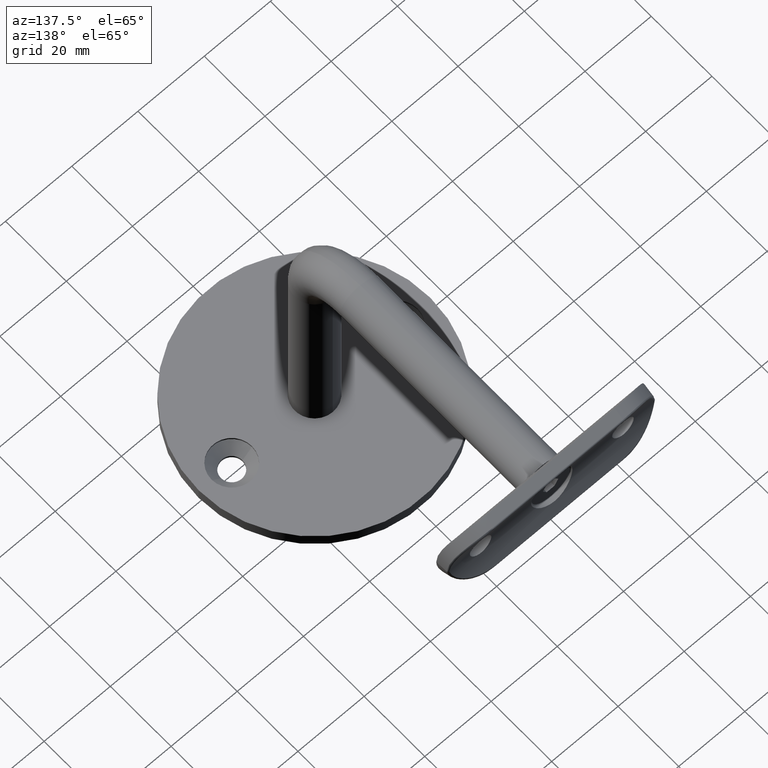
[diagram: clean part render]
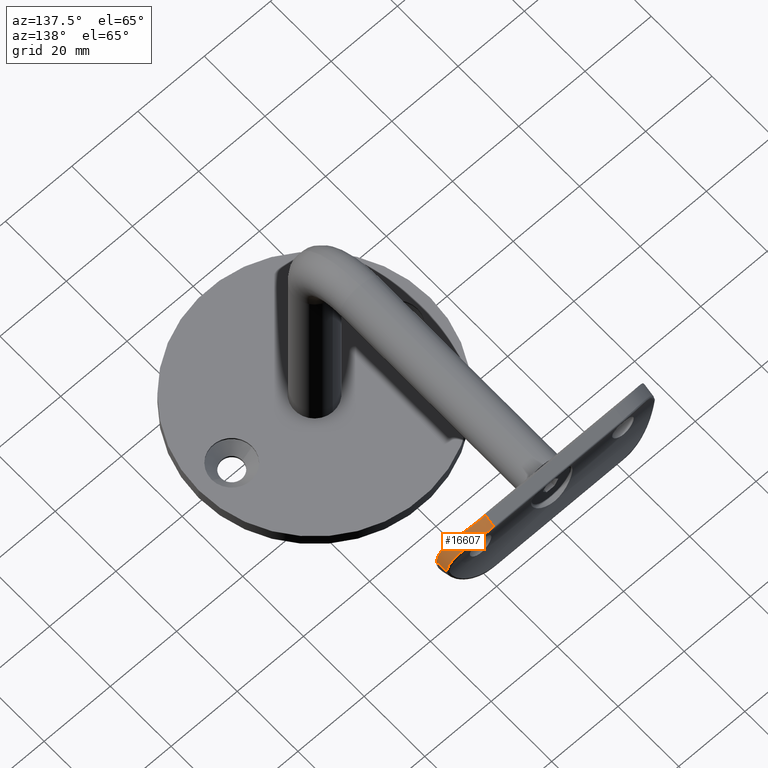
[diagram: same view with one face highlighted and labeled with its STEP entity id]
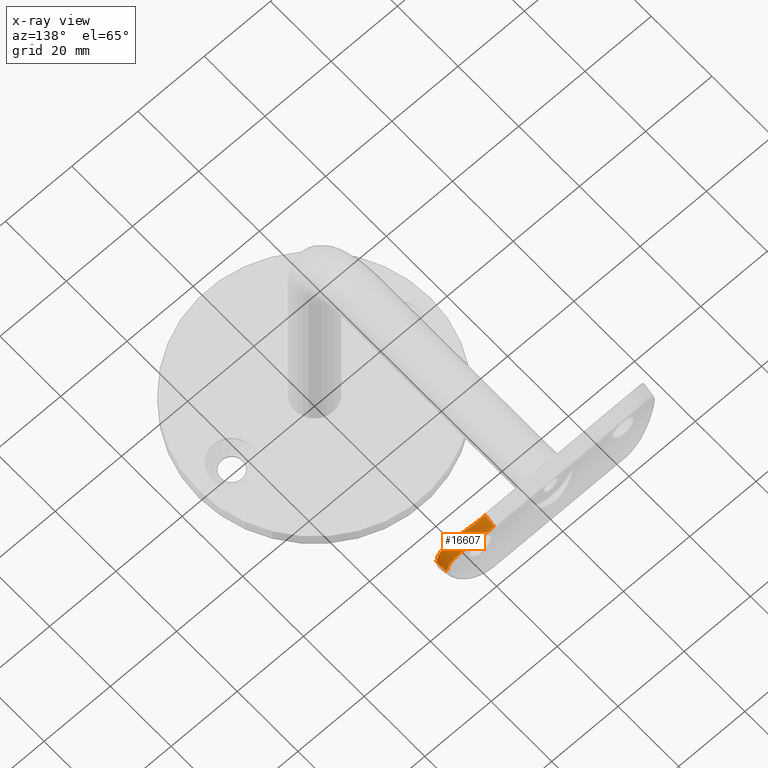
[diagram: x-ray of the same camera — body ghosted, the highlighted face saturated]
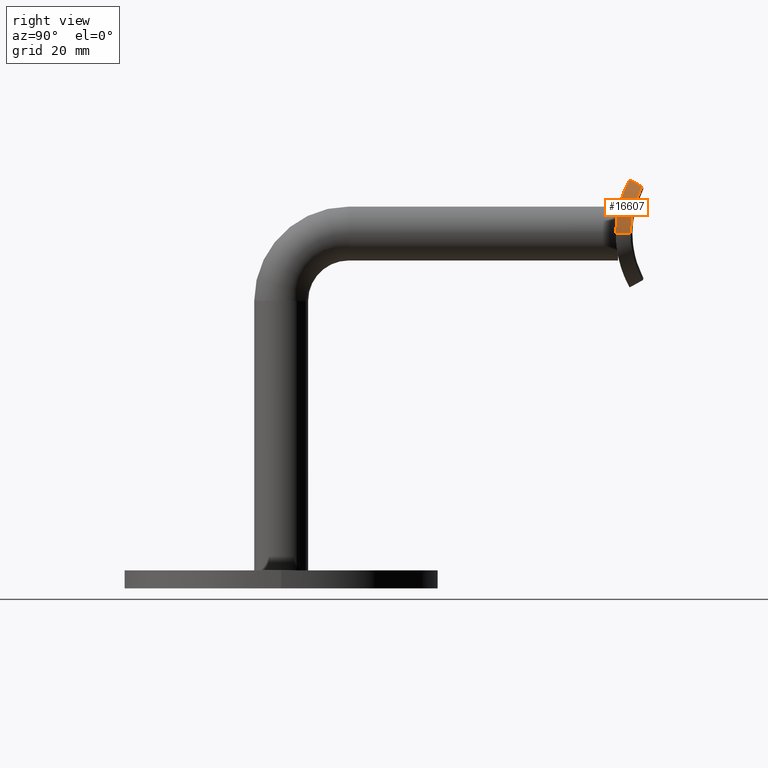
[diagram: same view with one face highlighted and labeled with its STEP entity id]
A machine part, auxiliary view. The second image highlights one B-rep face of the part: STEP entity #16607.
The next image is the same camera in x-ray: the body ghosted, the highlighted face saturated — about 0% of this face is hidden behind the body in this view.
A second angle (right view) of the same face is appended — the face is thin or edge-on in the first view.
In plain terms, the highlighted cylindrical surface (partial cylindrical patch) has radius 12 mm, axis along (-0, 0.8762, -0.4819).
Its self-contained STEP definition (entity closure, byte-faithful):
#77 = VERTEX_POINT ( 'NONE', #16967 ) ;
#687 = LINE ( 'NONE', #11283, #12724 ) ;
#697 = CARTESIAN_POINT ( 'NONE',  ( -4.343585444218764025, -3.321130880666761431, 30.82433790244271776 ) ) ;
#803 = DIRECTION ( 'NONE',  ( -0.8762109800277929628, 0.4819277108433738799, 0.000000000000000000 ) ) ;
#962 = CARTESIAN_POINT ( 'NONE',  ( -10.45505487545768375, 2.191269701761547228, 20.24369463097176691 ) ) ;
#1048 = CARTESIAN_POINT ( 'NONE',  ( -10.14034840887870992, 2.029866555024495423, 22.41475408195946528 ) ) ;
#1067 = DIRECTION ( 'NONE',  ( 0.4819277108433713264, 0.8762109800277942950, 2.128825503829664960E-31 ) ) ;
#1587 = B_SPLINE_CURVE_WITH_KNOTS ( 'NONE', 3,
 ( #11327, #17417, #4014, #14572, #2364, #12918, #17473, #5544, #8507, #10079, #14513, #5599, #6856, #19082, #5467, #18878, #16101, #2445, #6933, #16172, #13117, #1048, #3904, #7038, #962, #8399 ),
 .UNSPECIFIED., .F., .F.,
 ( 4, 2, 2, 2, 2, 2, 2, 2, 2, 2, 2, 2, 4 ),
 ( 0.000000000000000000, 0.001112496874376508625, 0.002224993748753017250, 0.004449987497506034499, 0.005562484371882542473, 0.006674981246259051315, 0.008899974995012068998, 0.01001247186938857697, 0.01112496874376508495, 0.01334996249251810263, 0.01446245936689461581, 0.01557495624127113246, 0.01779994999002414841 ),
 .UNSPECIFIED. ) ;
#1591 = CARTESIAN_POINT ( 'NONE',  ( -2.794747767780312309, -3.545827601457804512, 31.23757162576542967 ) ) ;
#1649 = CARTESIAN_POINT ( 'NONE',  ( -3.959980470126875929, -3.386209395477596029, 30.94697538539424997 ) ) ;
#1676 = FACE_OUTER_BOUND ( 'NONE', #9005, .T. ) ;
#1783 = CARTESIAN_POINT ( 'NONE',  ( 1.387778780781445676E-14, -3.699999999999994849, 31.50000000000009592 ) ) ;
#2215 = CARTESIAN_POINT ( 'NONE',  ( -10.45505487545768375, 2.191269701761547228, 19.50000000000005329 ) ) ;
#2360 = CARTESIAN_POINT ( 'NONE',  ( -10.86337671054178955, -1.207519595627714271, 24.95273175522534714 ) ) ;
#2364 = CARTESIAN_POINT ( 'NONE',  ( -1.823709883739394133, -0.3711974704666565761, 31.06997820427045198 ) ) ;
#2395 = CARTESIAN_POINT ( 'NONE',  ( -10.51395294504072453, -1.376102020913306134, 25.65610659191677101 ) ) ;
#2445 = CARTESIAN_POINT ( 'NONE',  ( -9.196144659064056981, 1.577887941172872344, 25.17001518979875030 ) ) ;
#2527 = EDGE_CURVE ( 'NONE', #77, #18684, #8912, .T. ) ;
#2947 = CARTESIAN_POINT ( 'NONE',  ( 0.000000000000000000, -0.4686549437375175930, 31.39852492656318361 ) ) ;
#3402 = CARTESIAN_POINT ( 'NONE',  ( -11.42861343239428074, -0.9245719279826777326, 23.47385143687697351 ) ) ;
#3904 = CARTESIAN_POINT ( 'NONE',  ( -10.21500871849430681, 2.067696369064313977, 22.05711163707689693 ) ) ;
#4014 = CARTESIAN_POINT ( 'NONE',  ( -0.7358220946504111515, -0.4485476517703157473, 31.29923357073371193 ) ) ;
#4345 = CARTESIAN_POINT ( 'NONE',  ( 0.000000000000000000, -0.4686549437375175930, 31.39852492656318361 ) ) ;
#4386 = CARTESIAN_POINT ( 'NONE',  ( -5.478439242681507894E-16, -2.619075602068019482, 31.50000000000007816 ) ) ;
#4812 = VERTEX_POINT ( 'NONE', #19053 ) ;
#5467 = CARTESIAN_POINT ( 'NONE',  ( -8.056363116155601745, 1.104545384783484074, 27.00031777044242176 ) ) ;
#5544 = CARTESIAN_POINT ( 'NONE',  ( -4.534825437327002717, 0.04882151512705591723, 30.02213823842951967 ) ) ;
#5599 = CARTESIAN_POINT ( 'NONE',  ( -6.614694112078402632, 0.5932317887516888044, 28.59215257876485339 ) ) ;
#6338 = CARTESIAN_POINT ( 'NONE',  ( -1.613102312184475862, -3.660295573399483526, 31.43708710865753631 ) ) ;
#6413 = CARTESIAN_POINT ( 'NONE',  ( -11.99999999999999822, -0.6176534026920422749, 20.31329885972726501 ) ) ;
#6856 = CARTESIAN_POINT ( 'NONE',  ( -7.131093571847326729, 0.7641680875063645573, 28.10124151802551751 ) ) ;
#6933 = CARTESIAN_POINT ( 'NONE',  ( -9.493047847731133970, 1.715295632416910632, 24.51326570578509489 ) ) ;
#7038 = CARTESIAN_POINT ( 'NONE',  ( -10.39441033852599361, 2.159319790260061822, 20.97575775976518386 ) ) ;
#7070 = ORIENTED_EDGE ( 'NONE', *, *, #12336, .F. ) ;
#7624 = CARTESIAN_POINT ( 'NONE',  ( -9.651496139240686389, -1.754897554413157312, 26.97737785628724438 ) ) ;
#7946 = CARTESIAN_POINT ( 'NONE',  ( -7.144447545478562311, -2.655485527817088798, 29.42030368926522144 ) ) ;
#7995 = CARTESIAN_POINT ( 'NONE',  ( -11.64449887647190529, -0.8100347474685033466, 22.69149219421947095 ) ) ;
#8068 = CARTESIAN_POINT ( 'NONE',  ( -11.99999999999999645, -0.6176534026920421638, 19.50000000000005329 ) ) ;
#8399 = CARTESIAN_POINT ( 'NONE',  ( -10.45505487545768375, 2.191269701761547228, 19.50000000000005329 ) ) ;
#8507 = CARTESIAN_POINT ( 'NONE',  ( -4.850982341867919878, 0.1195039370242195198, 29.84545285072247367 ) ) ;
#8912 =( BOUNDED_CURVE ( )  B_SPLINE_CURVE ( 3, ( #8925, #4386, #16214, #2947 ),
 .UNSPECIFIED., .F., .F. ) 
 B_SPLINE_CURVE_WITH_KNOTS ( ( 4, 4 ),
 ( 4.712388980384689674, 4.842528913632067500 ),
 .UNSPECIFIED. ) 
 CURVE ( )  GEOMETRIC_REPRESENTATION_ITEM ( )  RATIONAL_B_SPLINE_CURVE ( ( 1.000000000000000000, 0.9985891310666825671, 0.9985891310666825671, 1.000000000000000000 ) ) 
 REPRESENTATION_ITEM ( '' )  );
#8925 = CARTESIAN_POINT ( 'NONE',  ( 1.387778780781445676E-14, -3.699999999999994849, 31.50000000000009592 ) ) ;
#9005 = EDGE_LOOP ( 'NONE', ( #18453, #10657, #7070, #11288 ) ) ;
#10079 = CARTESIAN_POINT ( 'NONE',  ( -5.467565589066857967, 0.2703062758299425994, 29.45920198927899136 ) ) ;
#10431 = CYLINDRICAL_SURFACE ( 'NONE', #12153, 12.00000000000000888 ) ;
#10657 = ORIENTED_EDGE ( 'NONE', *, *, #14782, .T. ) ;
#11283 = CARTESIAN_POINT ( 'NONE',  ( -11.99999999999999645, -0.6176534026920421638, 19.50000000000005329 ) ) ;
#11288 = ORIENTED_EDGE ( 'NONE', *, *, #17912, .F. ) ;
#11327 = CARTESIAN_POINT ( 'NONE',  ( 0.000000000000000000, -0.4686549437375175930, 31.39852492656318361 ) ) ;
#11489 = CARTESIAN_POINT ( 'NONE',  ( -7.465386431756417807, -2.556697687672526254, 29.18815436188819845 ) ) ;
#11764 = CARTESIAN_POINT ( 'NONE',  ( -6.156121038829873271, -2.936724213265567762, 30.05584034722588527 ) ) ;
#12153 = AXIS2_PLACEMENT_3D ( 'NONE', #15853, #15782, #803 ) ;
#12155 = CARTESIAN_POINT ( 'NONE',  ( -3.185422266228728816, -3.498506488204327081, 31.15346151089251947 ) ) ;
#12336 = EDGE_CURVE ( 'NONE', #4812, #17467, #687, .T. ) ;
#12338 = CARTESIAN_POINT ( 'NONE',  ( -0.8125589719993525639, -3.699999999999995293, 31.50000000000008882 ) ) ;
#12724 = VECTOR ( 'NONE', #1067, 1000.000000000000114 ) ;
#12780 = CARTESIAN_POINT ( 'NONE',  ( -5.455945028680379671, -3.106646016184843706, 30.40527435075050278 ) ) ;
#12918 = CARTESIAN_POINT ( 'NONE',  ( -2.885545255493455752, -0.2540987631409992731, 30.76614118052232527 ) ) ;
#13117 = CARTESIAN_POINT ( 'NONE',  ( -9.960288091199348770, 1.940309669445998475, 23.12431856137348518 ) ) ;
#13394 = CARTESIAN_POINT ( 'NONE',  ( -8.362564540343033315, -2.255537001843879175, 28.43211677885600963 ) ) ;
#14109 = CARTESIAN_POINT ( 'NONE',  ( -9.880202087646484443, -1.657055889912076641, 26.65553979867369350 ) ) ;
#14513 = CARTESIAN_POINT ( 'NONE',  ( -5.764533070701223672, 0.3496055397819254895, 29.25166888921786779 ) ) ;
#14572 = CARTESIAN_POINT ( 'NONE',  ( -1.462267733718364049, -0.4027156887385303641, 31.15653743707213152 ) ) ;
#14782 = EDGE_CURVE ( 'NONE', #18684, #17467, #1587, .T. ) ;
#14804 = CARTESIAN_POINT ( 'NONE',  ( -8.074259893479245775, -2.356718930518964861, 28.69397140321255435 ) ) ;
#15169 = CARTESIAN_POINT ( 'NONE',  ( -9.166149050193510561, -1.952978448765885000, 27.58848537800131595 ) ) ;
#15672 = B_SPLINE_CURVE_WITH_KNOTS ( 'NONE', 3,
 ( #1783, #12338, #6338, #1591, #12155, #1649, #697, #12780, #11764, #7946, #11489, #14804, #13394, #17303, #15169, #7624, #14109, #2395, #2360, #3402, #7995, #18493, #6413, #8068 ),
 .UNSPECIFIED., .F., .F.,
 ( 4, 2, 2, 2, 2, 2, 2, 2, 2, 2, 2, 4 ),
 ( 1.355197106528105976E-17, 0.002406420888280993292, 0.003609631332421483867, 0.004812841776561975309, 0.007219262664842957325, 0.008422473108983448767, 0.009625683553123938474, 0.01082889399726442818, 0.01203210444140491789, 0.01443852532968590598, 0.01684494621796689753, 0.01925136710624788389 ),
 .UNSPECIFIED. ) ;
#15782 = DIRECTION ( 'NONE',  ( 0.4819277108433713819, 0.8762109800277944061, 2.128825503829664960E-31 ) ) ;
#15853 = CARTESIAN_POINT ( 'NONE',  ( -1.485468239666484891, -6.400785932812527612, 19.50000000000005329 ) ) ;
#16101 = CARTESIAN_POINT ( 'NONE',  ( -8.663671254142672140, 1.349547193717903992, 26.10600176303323749 ) ) ;
#16172 = CARTESIAN_POINT ( 'NONE',  ( -9.854190850944963387, 1.888249747847399185, 23.47806087955941123 ) ) ;
#16214 = CARTESIAN_POINT ( 'NONE',  ( -1.094528444576713550E-15, -1.540438768114499091, 31.46612718541933518 ) ) ;
#16607 = ADVANCED_FACE ( 'NONE', ( #1676 ), #10431, .T. ) ;
#16967 = CARTESIAN_POINT ( 'NONE',  ( 1.387778780781445676E-14, -3.699999999999994849, 31.50000000000009592 ) ) ;
#17303 = CARTESIAN_POINT ( 'NONE',  ( -8.908510052025722104, -2.053669611251181415, 27.87937364185433609 ) ) ;
#17417 = CARTESIAN_POINT ( 'NONE',  ( -0.3694255239971108162, -0.4630373677216959027, 31.35580555292294491 ) ) ;
#17467 = VERTEX_POINT ( 'NONE', #2215 ) ;
#17473 = CARTESIAN_POINT ( 'NONE',  ( -3.563487049633557557, -0.1463804021403945221, 30.50564224895482468 ) ) ;
#17912 = EDGE_CURVE ( 'NONE', #77, #4812, #15672, .T. ) ;
#18453 = ORIENTED_EDGE ( 'NONE', *, *, #2527, .T. ) ;
#18493 = CARTESIAN_POINT ( 'NONE',  ( -11.92848259060789218, -0.6574309275928190699, 21.11410712426877723 ) ) ;
#18684 = VERTEX_POINT ( 'NONE', #4345 ) ;
#18878 = CARTESIAN_POINT ( 'NONE',  ( -8.471561614151687181, 1.269723628537310356, 26.40975643252796345 ) ) ;
#19053 = CARTESIAN_POINT ( 'NONE',  ( -11.99999999999999645, -0.6176534026920421638, 19.50000000000005329 ) ) ;
#19082 = CARTESIAN_POINT ( 'NONE',  ( -7.833305283921765394, 1.019266358118514626, 27.28663773652146318 ) ) ;